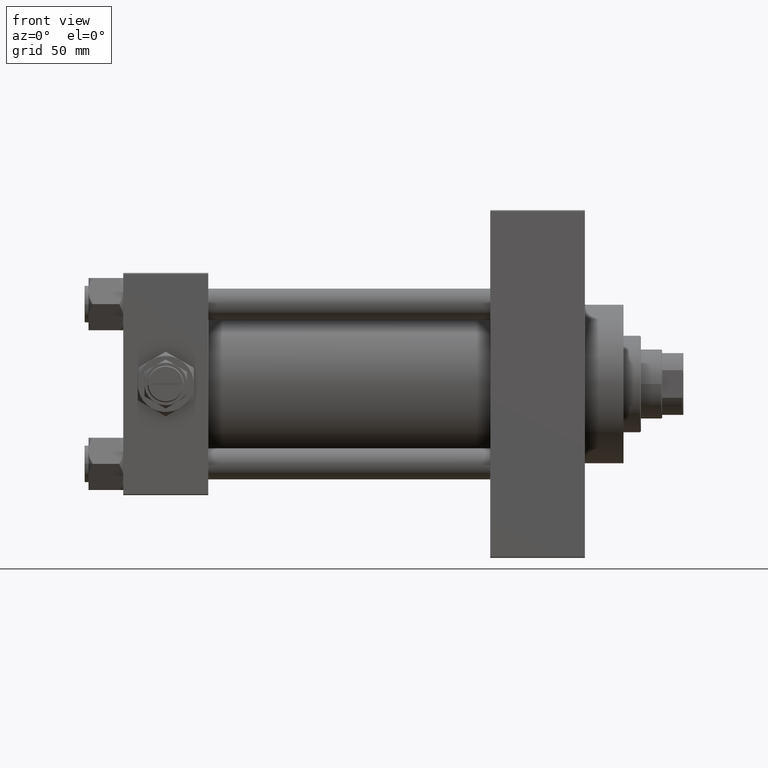
[diagram: clean part render]
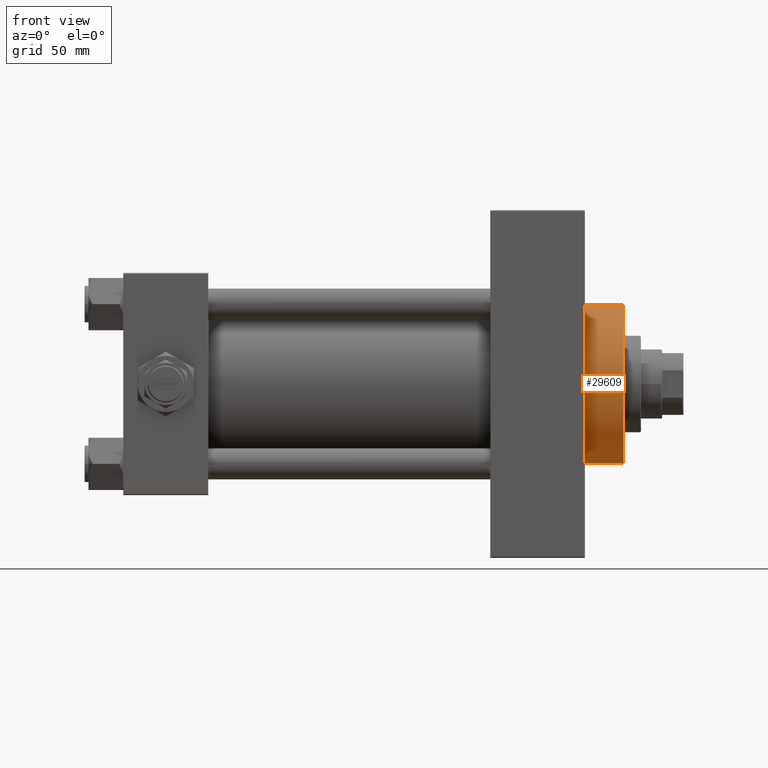
[diagram: same view with one face highlighted and labeled with its STEP entity id]
A machine part, front view. The second image highlights one B-rep face of the part: STEP entity #29609.
In plain terms, the highlighted cylindrical surface (partial cylindrical patch) has radius 41 mm, axis along (-1, -0, -0).
Its self-contained STEP definition (entity closure, byte-faithful):
#395 = CIRCLE ( 'NONE', #5211, 41.00000000000000000 ) ;
#4285 = CARTESIAN_POINT ( 'NONE',  ( 259.0000000000000000, 5.021051876504148963E-15, -41.00000000000000000 ) ) ;
#4568 = LINE ( 'NONE', #42820, #27819 ) ;
#5211 = AXIS2_PLACEMENT_3D ( 'NONE', #31458, #49450, #23926 ) ;
#5940 = ORIENTED_EDGE ( 'NONE', *, *, #42829, .T. ) ;
#5941 = CARTESIAN_POINT ( 'NONE',  ( 259.0000000000000000, 0.000000000000000000, 41.00000000000000000 ) ) ;
#6723 = EDGE_LOOP ( 'NONE', ( #38127, #32224, #15788, #5940 ) ) ;
#8561 = DIRECTION ( 'NONE',  ( -1.000000000000000000, -0.000000000000000000, -0.000000000000000000 ) ) ;
#8953 = EDGE_CURVE ( 'NONE', #19338, #29020, #43660, .T. ) ;
#9224 = DIRECTION ( 'NONE',  ( 1.000000000000000000, 0.000000000000000000, 0.000000000000000000 ) ) ;
#10327 = CIRCLE ( 'NONE', #21488, 41.00000000000000000 ) ;
#11162 = DIRECTION ( 'NONE',  ( -1.000000000000000000, -0.000000000000000000, -0.000000000000000000 ) ) ;
#13919 = DIRECTION ( 'NONE',  ( 0.000000000000000000, 0.000000000000000000, 1.000000000000000000 ) ) ;
#15788 = ORIENTED_EDGE ( 'NONE', *, *, #24623, .T. ) ;
#16963 = DIRECTION ( 'NONE',  ( 0.000000000000000000, 0.000000000000000000, -1.000000000000000000 ) ) ;
#19338 = VERTEX_POINT ( 'NONE', #4285 ) ;
#21488 = AXIS2_PLACEMENT_3D ( 'NONE', #28971, #9224, #16963 ) ;
#21871 = CARTESIAN_POINT ( 'NONE',  ( 259.0000000000000000, 5.021051876504148963E-15, -41.00000000000000000 ) ) ;
#23484 = VECTOR ( 'NONE', #40399, 1000.000000000000000 ) ;
#23926 = DIRECTION ( 'NONE',  ( 0.000000000000000000, 0.000000000000000000, -1.000000000000000000 ) ) ;
#24623 = EDGE_CURVE ( 'NONE', #38798, #33657, #4568, .T. ) ;
#26328 = EDGE_CURVE ( 'NONE', #38798, #19338, #10327, .T. ) ;
#27819 = VECTOR ( 'NONE', #8561, 1000.000000000000000 ) ;
#28971 = CARTESIAN_POINT ( 'NONE',  ( 259.0000000000000000, 0.000000000000000000, 0.000000000000000000 ) ) ;
#29020 = VERTEX_POINT ( 'NONE', #39020 ) ;
#29609 = ADVANCED_FACE ( 'NONE', ( #33428 ), #30164, .T. ) ;
#30164 = CYLINDRICAL_SURFACE ( 'NONE', #47153, 41.00000000000000000 ) ;
#31458 = CARTESIAN_POINT ( 'NONE',  ( 239.0000000000000000, 0.000000000000000000, 0.000000000000000000 ) ) ;
#32076 = CARTESIAN_POINT ( 'NONE',  ( 239.0000000000000000, 0.000000000000000000, 41.00000000000000000 ) ) ;
#32224 = ORIENTED_EDGE ( 'NONE', *, *, #26328, .F. ) ;
#33428 = FACE_OUTER_BOUND ( 'NONE', #6723, .T. ) ;
#33657 = VERTEX_POINT ( 'NONE', #32076 ) ;
#38127 = ORIENTED_EDGE ( 'NONE', *, *, #8953, .F. ) ;
#38798 = VERTEX_POINT ( 'NONE', #5941 ) ;
#39020 = CARTESIAN_POINT ( 'NONE',  ( 239.0000000000000000, 5.021051876504148963E-15, -41.00000000000000000 ) ) ;
#40399 = DIRECTION ( 'NONE',  ( -1.000000000000000000, -0.000000000000000000, -0.000000000000000000 ) ) ;
#42820 = CARTESIAN_POINT ( 'NONE',  ( 259.0000000000000000, 0.000000000000000000, 41.00000000000000000 ) ) ;
#42829 = EDGE_CURVE ( 'NONE', #33657, #29020, #395, .T. ) ;
#43660 = LINE ( 'NONE', #21871, #23484 ) ;
#45409 = CARTESIAN_POINT ( 'NONE',  ( 259.0000000000000000, 0.000000000000000000, 0.000000000000000000 ) ) ;
#47153 = AXIS2_PLACEMENT_3D ( 'NONE', #45409, #11162, #13919 ) ;
#49450 = DIRECTION ( 'NONE',  ( 1.000000000000000000, 0.000000000000000000, 0.000000000000000000 ) ) ;